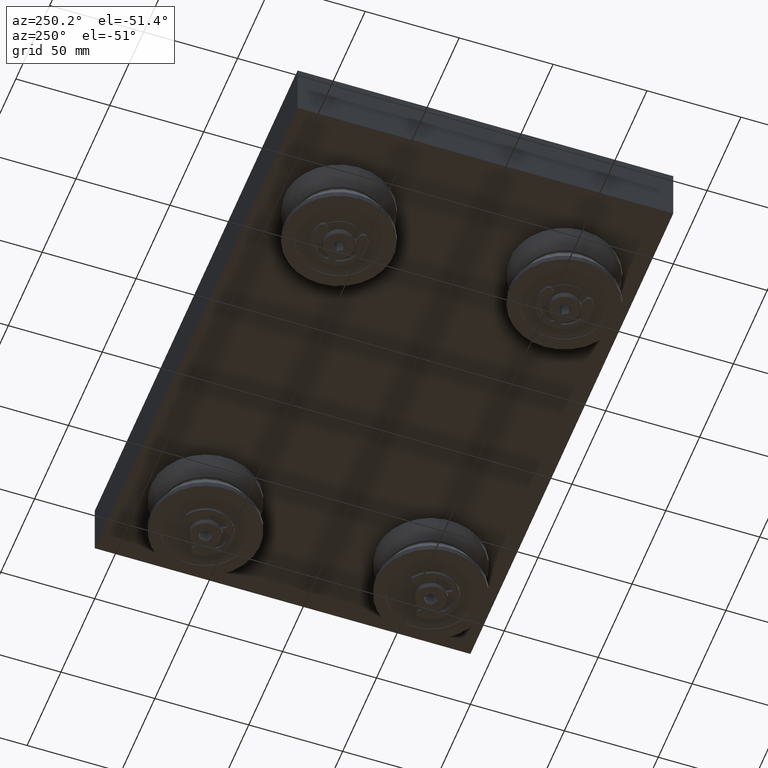
[diagram: clean part render]
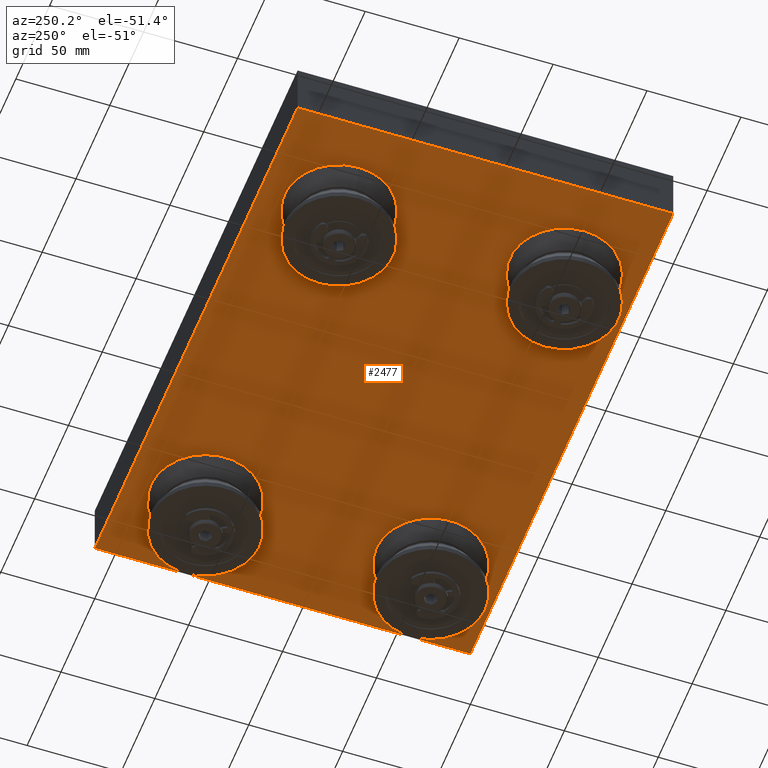
[diagram: same view with one face highlighted and labeled with its STEP entity id]
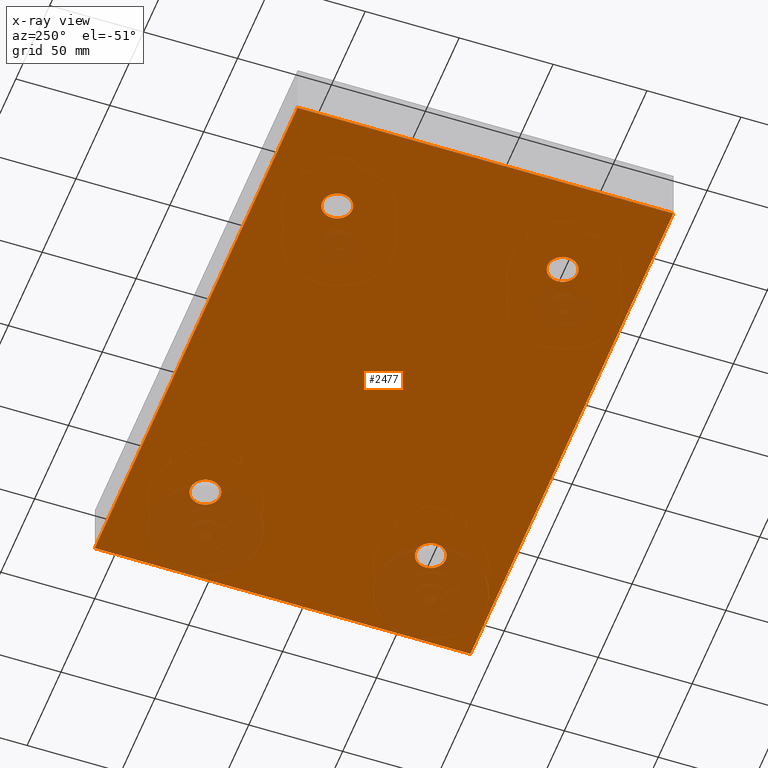
[diagram: x-ray of the same camera — body ghosted, the highlighted face saturated]
A machine part, auxiliary view. The second image highlights one B-rep face of the part: STEP entity #2477.
The next image is the same camera in x-ray: the body ghosted, the highlighted face saturated — about 10% of this face is hidden behind the body in this view.
In plain terms, the highlighted planar face has unit normal (0, 0, 1).
Its self-contained STEP definition (entity closure, byte-faithful):
#147=LINE('',#4045,#346);
#151=LINE('',#4053,#350);
#154=LINE('',#4059,#353);
#157=LINE('',#4064,#356);
#346=VECTOR('',#3215,10.);
#350=VECTOR('',#3221,10.);
#353=VECTOR('',#3226,10.);
#356=VECTOR('',#3231,10.);
#590=FACE_BOUND('',#802,.T.);
#591=FACE_BOUND('',#803,.T.);
#592=FACE_BOUND('',#804,.T.);
#593=FACE_BOUND('',#805,.T.);
#632=FACE_OUTER_BOUND('',#801,.T.);
#801=EDGE_LOOP('',(#1736,#1737,#1738,#1739));
#802=EDGE_LOOP('',(#1740));
#803=EDGE_LOOP('',(#1741));
#804=EDGE_LOOP('',(#1742));
#805=EDGE_LOOP('',(#1743));
#973=CIRCLE('',#2831,8.);
#977=CIRCLE('',#2838,8.);
#981=CIRCLE('',#2845,8.);
#985=CIRCLE('',#2852,8.);
#1109=VERTEX_POINT('',#4000);
#1113=VERTEX_POINT('',#4013);
#1117=VERTEX_POINT('',#4026);
#1121=VERTEX_POINT('',#4039);
#1122=VERTEX_POINT('',#4043);
#1123=VERTEX_POINT('',#4044);
#1126=VERTEX_POINT('',#4052);
#1128=VERTEX_POINT('',#4058);
#1330=EDGE_CURVE('',#1109,#1109,#973,.T.);
#1336=EDGE_CURVE('',#1113,#1113,#977,.T.);
#1342=EDGE_CURVE('',#1117,#1117,#981,.T.);
#1348=EDGE_CURVE('',#1121,#1121,#985,.T.);
#1349=EDGE_CURVE('',#1122,#1123,#147,.T.);
#1353=EDGE_CURVE('',#1123,#1126,#151,.T.);
#1356=EDGE_CURVE('',#1126,#1128,#154,.T.);
#1359=EDGE_CURVE('',#1128,#1122,#157,.T.);
#1736=ORIENTED_EDGE('',*,*,#1359,.T.);
#1737=ORIENTED_EDGE('',*,*,#1349,.T.);
#1738=ORIENTED_EDGE('',*,*,#1353,.T.);
#1739=ORIENTED_EDGE('',*,*,#1356,.T.);
#1740=ORIENTED_EDGE('',*,*,#1330,.T.);
#1741=ORIENTED_EDGE('',*,*,#1336,.T.);
#1742=ORIENTED_EDGE('',*,*,#1342,.T.);
#1743=ORIENTED_EDGE('',*,*,#1348,.T.);
#2375=PLANE('',#2858);
#2477=ADVANCED_FACE('',(#632,#590,#591,#592,#593),#2375,.F.);
#2831=AXIS2_PLACEMENT_3D('',#4002,#3163,#3164);
#2838=AXIS2_PLACEMENT_3D('',#4015,#3179,#3180);
#2845=AXIS2_PLACEMENT_3D('',#4028,#3195,#3196);
#2852=AXIS2_PLACEMENT_3D('',#4041,#3211,#3212);
#2858=AXIS2_PLACEMENT_3D('',#4067,#3235,#3236);
#3163=DIRECTION('center_axis',(0.,0.,1.));
#3164=DIRECTION('ref_axis',(1.,0.,0.));
#3179=DIRECTION('center_axis',(0.,0.,1.));
#3180=DIRECTION('ref_axis',(1.,0.,0.));
#3195=DIRECTION('center_axis',(0.,0.,1.));
#3196=DIRECTION('ref_axis',(1.,0.,0.));
#3211=DIRECTION('center_axis',(0.,0.,1.));
#3212=DIRECTION('ref_axis',(1.,0.,0.));
#3215=DIRECTION('',(0.,-1.,0.));
#3221=DIRECTION('',(-1.,0.,0.));
#3226=DIRECTION('',(0.,1.,0.));
#3231=DIRECTION('',(1.,0.,0.));
#3235=DIRECTION('center_axis',(0.,0.,1.));
#3236=DIRECTION('ref_axis',(1.,0.,0.));
#4000=CARTESIAN_POINT('',(89.5,-60.,0.));
#4002=CARTESIAN_POINT('Origin',(97.5,-60.,0.));
#4013=CARTESIAN_POINT('',(-105.5,60.,0.));
#4015=CARTESIAN_POINT('Origin',(-97.5,60.,0.));
#4026=CARTESIAN_POINT('',(89.5,60.,0.));
#4028=CARTESIAN_POINT('Origin',(97.5,60.,0.));
#4039=CARTESIAN_POINT('',(-105.5,-60.,0.));
#4041=CARTESIAN_POINT('Origin',(-97.5,-60.,0.));
#4043=CARTESIAN_POINT('',(150.,100.,0.));
#4044=CARTESIAN_POINT('',(150.,-100.,0.));
#4045=CARTESIAN_POINT('',(150.,100.,0.));
#4052=CARTESIAN_POINT('',(-150.,-100.,0.));
#4053=CARTESIAN_POINT('',(150.,-100.,0.));
#4058=CARTESIAN_POINT('',(-150.,100.,0.));
#4059=CARTESIAN_POINT('',(-150.,-100.,0.));
#4064=CARTESIAN_POINT('',(-150.,100.,0.));
#4067=CARTESIAN_POINT('Origin',(0.,0.,0.));